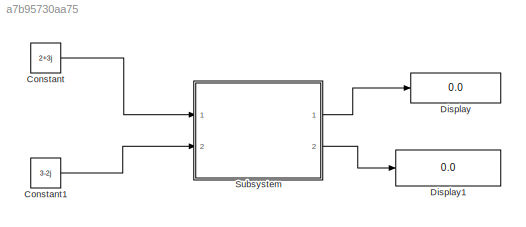
MODEL slx_a7b95730aa75
KIND model
CONFIG AbsTol = auto
CONFIG FixedStep = auto
CONFIG MaxStep = auto
CONFIG MinStep = auto
CONFIG RelTol = 1e-3
CONFIG SampleTimeConstraint = Unconstrained
CONFIG Solver = FixedStepDiscrete
CONFIG SolverMode = SingleTasking
CONFIG SolverName = FixedStepDiscrete
CONFIG StartTime = 0.0
CONFIG StopTime = 10
BLOCK [Constant] Constant
  OutDataTypeStr = fixdt(1,16,12)
  SampleTime = 1
  Value = 2+3j
BLOCK [Constant] Constant1
  OutDataTypeStr = fixdt(1,16,12)
  SampleTime = 1
  Value = 3-2j
BLOCK [Display] Display
  Decimation = 1
  Ports = [1]
BLOCK [Display] Display1
  Decimation = 1
  Ports = [1]
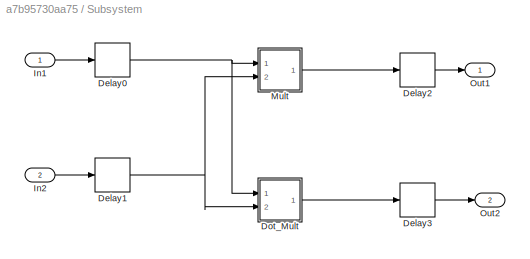
BLOCK [SubSystem] Subsystem
  Ports = [2, 2]
  RequestExecContextInheritance = off
  Variant = off
BLOCK [Delay] Subsystem/Delay0
  DelayLength = 1
  InputPortMap = u0
  Ports = [1, 1]
BLOCK [Delay] Subsystem/Delay1
  DelayLength = 1
  InputPortMap = u0
  Ports = [1, 1]
BLOCK [Delay] Subsystem/Delay2
  DelayLength = 1
  InputPortMap = u0
  Ports = [1, 1]
BLOCK [Delay] Subsystem/Delay3
  DelayLength = 1
  InputPortMap = u0
  Ports = [1, 1]
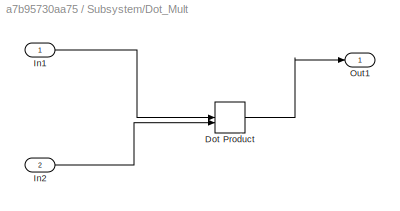
BLOCK [SubSystem] Subsystem/Dot_Mult
  Ports = [2, 1]
  RequestExecContextInheritance = off
  Variant = off
BLOCK [DotProduct] Subsystem/Dot_Mult/Dot Product
  OutDataTypeStr = Inherit: Inherit via internal rule
BLOCK [Inport] Subsystem/Dot_Mult/In1
  IconDisplay = Port number
BLOCK [Inport] Subsystem/Dot_Mult/In2
  IconDisplay = Port number
  Port = 2
BLOCK [Outport] Subsystem/Dot_Mult/Out1
  IconDisplay = Port number
BLOCK [Inport] Subsystem/In1
  IconDisplay = Port number
BLOCK [Inport] Subsystem/In2
  IconDisplay = Port number
  Port = 2
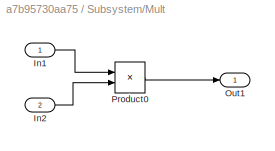
BLOCK [SubSystem] Subsystem/Mult
  Ports = [2, 1]
  RequestExecContextInheritance = off
  Variant = off
BLOCK [Inport] Subsystem/Mult/In1
  IconDisplay = Port number
BLOCK [Inport] Subsystem/Mult/In2
  IconDisplay = Port number
  Port = 2
BLOCK [Outport] Subsystem/Mult/Out1
  IconDisplay = Port number
BLOCK [Product] Subsystem/Mult/Product0
  InputSameDT = off
  OutDataTypeStr = Inherit: Inherit via internal rule
  Ports = [2, 1]
  RndMeth = Floor
  SaturateOnIntegerOverflow = off
BLOCK [Outport] Subsystem/Out1
  IconDisplay = Port number
BLOCK [Outport] Subsystem/Out2
  IconDisplay = Port number
  Port = 2
LINE Constant1:1 -> Subsystem:2
LINE Constant:1 -> Subsystem:1
NET Subsystem/Delay0:1 -> Subsystem/Dot_Mult:1, Subsystem/Mult:1
NET Subsystem/Delay1:1 -> Subsystem/Dot_Mult:2, Subsystem/Mult:2
LINE Subsystem/Delay2:1 -> Subsystem/Out1:1
LINE Subsystem/Delay3:1 -> Subsystem/Out2:1
LINE Subsystem/Dot_Mult/Dot Product:1 -> Subsystem/Dot_Mult/Out1:1
LINE Subsystem/Dot_Mult/In1:1 -> Subsystem/Dot_Mult/Dot Product:1
LINE Subsystem/Dot_Mult/In2:1 -> Subsystem/Dot_Mult/Dot Product:2
LINE Subsystem/Dot_Mult:1 -> Subsystem/Delay3:1
LINE Subsystem/In1:1 -> Subsystem/Delay0:1
LINE Subsystem/In2:1 -> Subsystem/Delay1:1
LINE Subsystem/Mult/In1:1 -> Subsystem/Mult/Product0:1
LINE Subsystem/Mult/In2:1 -> Subsystem/Mult/Product0:2
LINE Subsystem/Mult/Product0:1 -> Subsystem/Mult/Out1:1
LINE Subsystem/Mult:1 -> Subsystem/Delay2:1
LINE Subsystem:1 -> Display:1
LINE Subsystem:2 -> Display1:1
note: NET lines group one-source signal fan-out (src -> all destinations, sorted); 1:1 wires keep LINE
